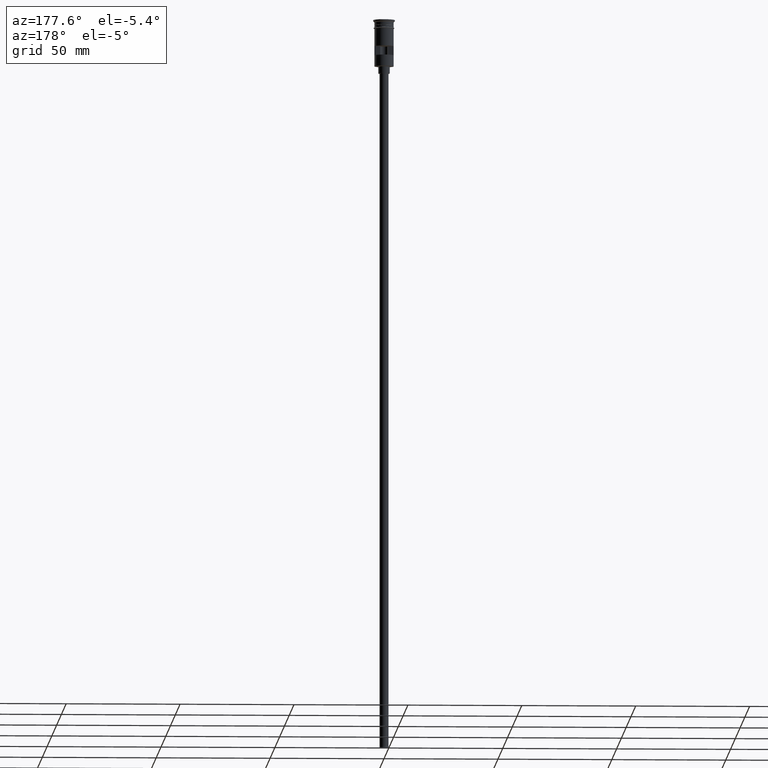
[diagram: clean part render]
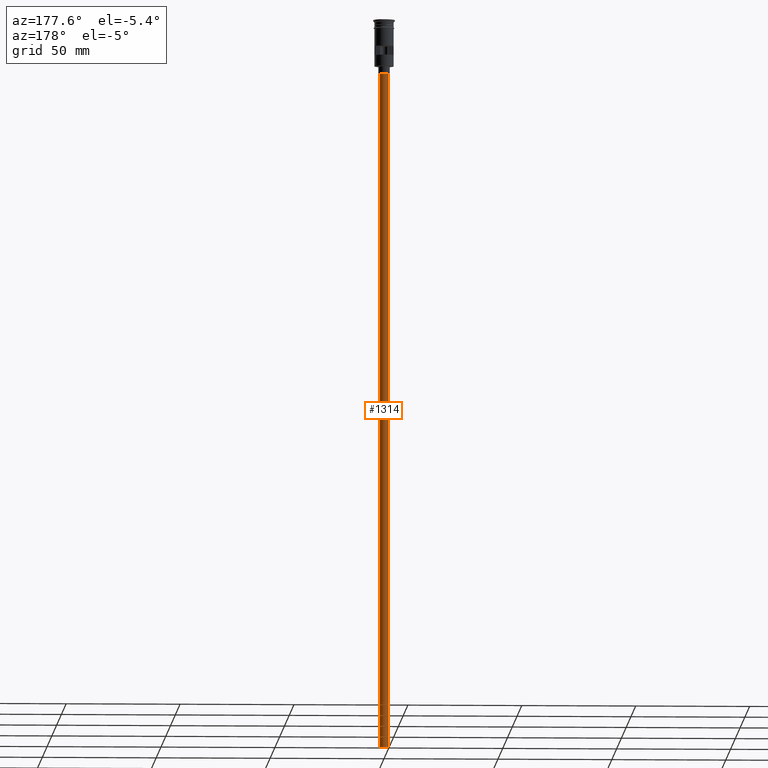
[diagram: same view with one face highlighted and labeled with its STEP entity id]
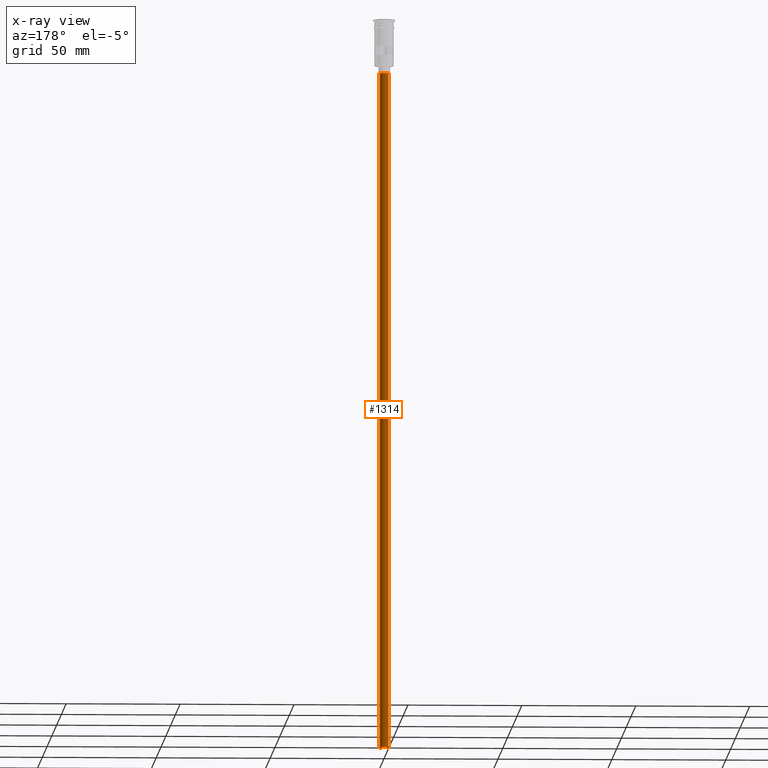
[diagram: x-ray of the same camera — body ghosted, the highlighted face saturated]
A machine part, auxiliary view. The second image highlights one B-rep face of the part: STEP entity #1314.
The next image is the same camera in x-ray: the body ghosted, the highlighted face saturated — about 0% of this face is hidden behind the body in this view.
In plain terms, the highlighted cylindrical surface (edge-blend (fillet) strip) has radius 2 mm, axis along (-0, -0, 1).
Its self-contained STEP definition (entity closure, byte-faithful):
#45 = DIRECTION ( 'NONE',  ( -0.000000000000000000, -0.000000000000000000, 1.000000000000000000 ) ) ;
#65 = CARTESIAN_POINT ( 'NONE',  ( -2.000000000000000000, 2.449293598294706414E-16, -23.49999999999999645 ) ) ;
#75 = EDGE_CURVE ( 'NONE', #910, #773, #420, .T. ) ;
#79 = ORIENTED_EDGE ( 'NONE', *, *, #796, .T. ) ;
#108 = VECTOR ( 'NONE', #1550, 1000.000000000000000 ) ;
#168 = ORIENTED_EDGE ( 'NONE', *, *, #997, .T. ) ;
#182 = CARTESIAN_POINT ( 'NONE',  ( 0.000000000000000000, 0.000000000000000000, -23.49999999999999645 ) ) ;
#187 = AXIS2_PLACEMENT_3D ( 'NONE', #195, #1519, #1445 ) ;
#193 = AXIS2_PLACEMENT_3D ( 'NONE', #182, #1159, #448 ) ;
#195 = CARTESIAN_POINT ( 'NONE',  ( 0.000000000000000000, 0.000000000000000000, -320.5000000000000000 ) ) ;
#210 = CARTESIAN_POINT ( 'NONE',  ( 2.000000000000000000, 0.000000000000000000, -23.49999999999999645 ) ) ;
#237 = CIRCLE ( 'NONE', #462, 2.000000000000000000 ) ;
#339 = VERTEX_POINT ( 'NONE', #689 ) ;
#420 = LINE ( 'NONE', #1284, #809 ) ;
#448 = DIRECTION ( 'NONE',  ( -1.000000000000000000, 0.000000000000000000, 0.000000000000000000 ) ) ;
#462 = AXIS2_PLACEMENT_3D ( 'NONE', #1257, #963, #489 ) ;
#489 = DIRECTION ( 'NONE',  ( -1.000000000000000000, 0.000000000000000000, 0.000000000000000000 ) ) ;
#531 = CIRCLE ( 'NONE', #193, 2.000000000000000000 ) ;
#532 = CARTESIAN_POINT ( 'NONE',  ( -2.000000000000000000, 2.449293598294706414E-16, -320.5000000000000000 ) ) ;
#665 = ORIENTED_EDGE ( 'NONE', *, *, #75, .F. ) ;
#689 = CARTESIAN_POINT ( 'NONE',  ( -2.000000000000000000, 2.449293598294706414E-16, -320.5000000000000000 ) ) ;
#773 = VERTEX_POINT ( 'NONE', #210 ) ;
#796 = EDGE_CURVE ( 'NONE', #339, #1199, #1344, .T. ) ;
#809 = VECTOR ( 'NONE', #45, 1000.000000000000000 ) ;
#821 = CARTESIAN_POINT ( 'NONE',  ( 2.000000000000000000, 0.000000000000000000, -320.5000000000000000 ) ) ;
#908 = CYLINDRICAL_SURFACE ( 'NONE', #187, 2.000000000000000000 ) ;
#910 = VERTEX_POINT ( 'NONE', #821 ) ;
#934 = EDGE_CURVE ( 'NONE', #339, #910, #237, .T. ) ;
#963 = DIRECTION ( 'NONE',  ( 0.000000000000000000, 0.000000000000000000, -1.000000000000000000 ) ) ;
#997 = EDGE_CURVE ( 'NONE', #1199, #773, #531, .T. ) ;
#1010 = EDGE_LOOP ( 'NONE', ( #1589, #79, #168, #665 ) ) ;
#1159 = DIRECTION ( 'NONE',  ( 0.000000000000000000, 0.000000000000000000, -1.000000000000000000 ) ) ;
#1199 = VERTEX_POINT ( 'NONE', #65 ) ;
#1257 = CARTESIAN_POINT ( 'NONE',  ( 0.000000000000000000, 0.000000000000000000, -320.5000000000000000 ) ) ;
#1284 = CARTESIAN_POINT ( 'NONE',  ( 2.000000000000000000, 0.000000000000000000, -320.5000000000000000 ) ) ;
#1311 = FACE_OUTER_BOUND ( 'NONE', #1010, .T. ) ;
#1314 = ADVANCED_FACE ( 'NONE', ( #1311 ), #908, .T. ) ;
#1344 = LINE ( 'NONE', #532, #108 ) ;
#1445 = DIRECTION ( 'NONE',  ( 1.000000000000000000, 0.000000000000000000, 0.000000000000000000 ) ) ;
#1519 = DIRECTION ( 'NONE',  ( -0.000000000000000000, -0.000000000000000000, 1.000000000000000000 ) ) ;
#1550 = DIRECTION ( 'NONE',  ( -0.000000000000000000, -0.000000000000000000, 1.000000000000000000 ) ) ;
#1589 = ORIENTED_EDGE ( 'NONE', *, *, #934, .F. ) ;